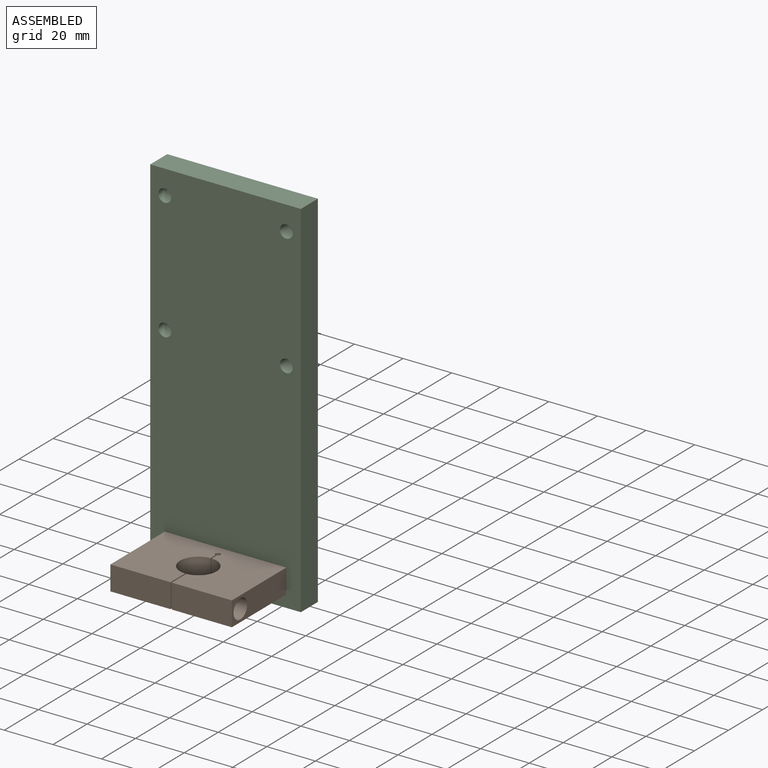
[diagram: assembled view]
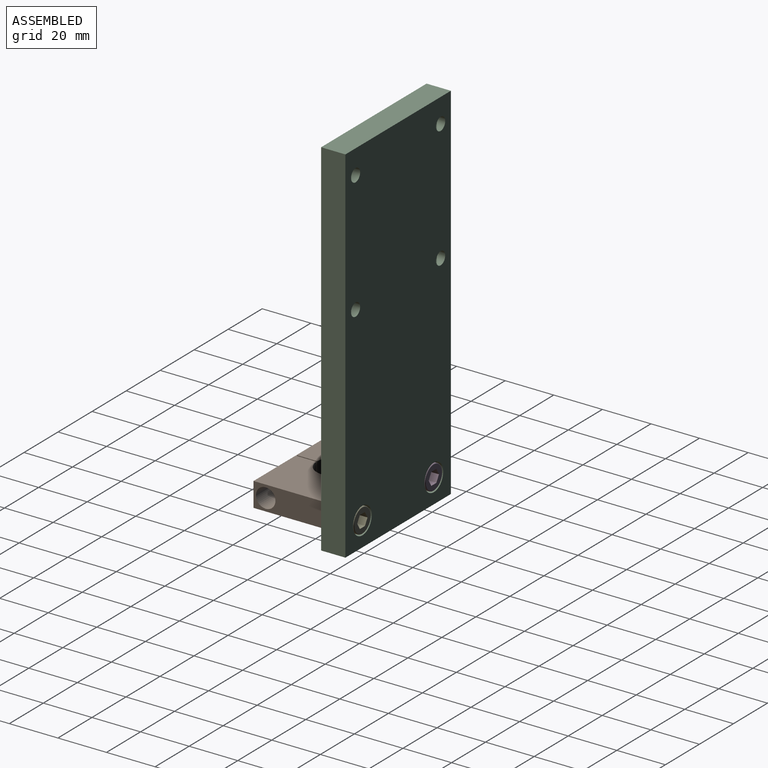
[diagram: assembled view, second angle]
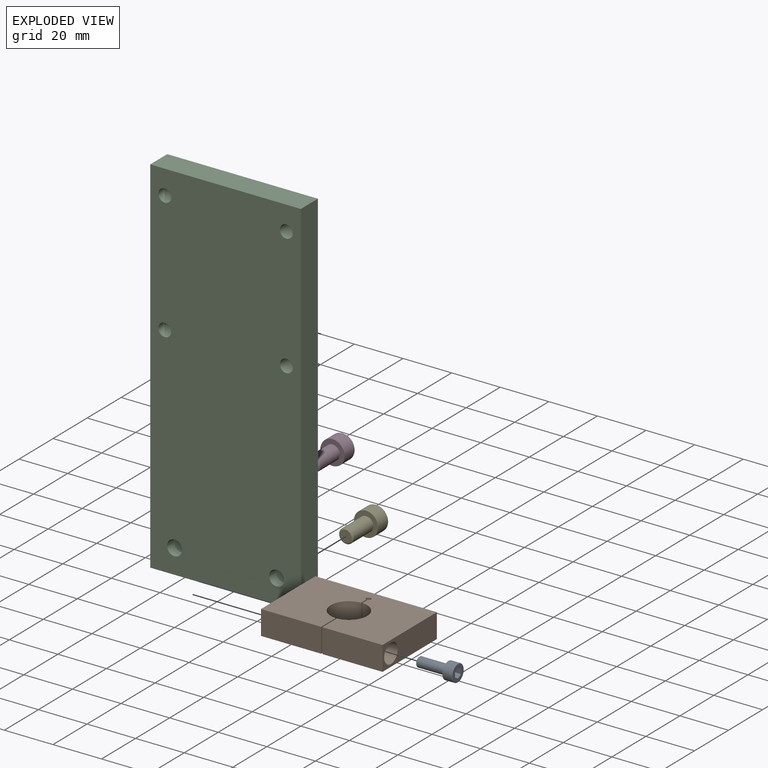
[diagram: exploded view]
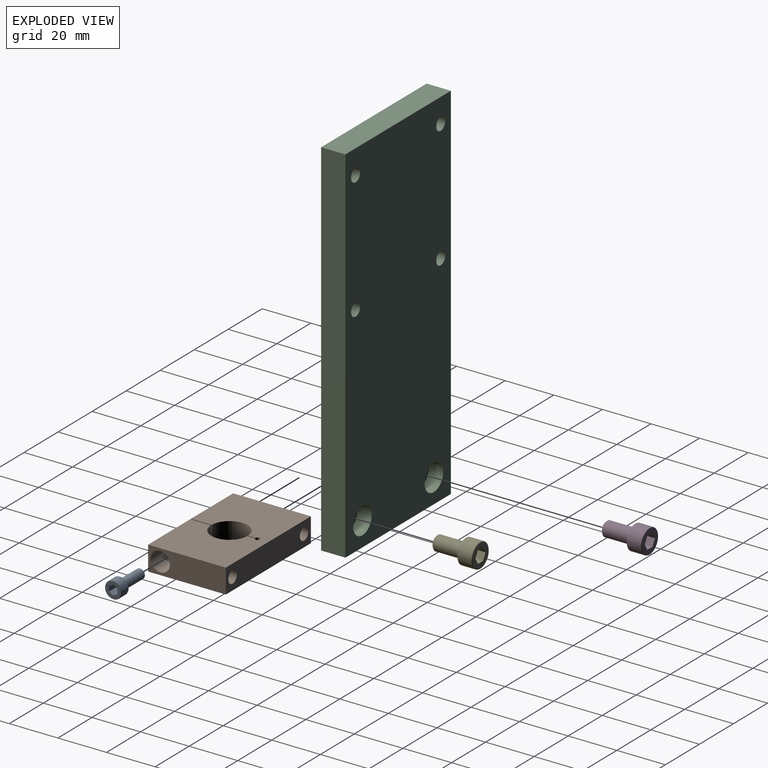
[diagram: exploded view, second angle]
ASSEMBLY  parts=5 mates=3
PART A: 14 faces, bbox 7.6x7.6x16 mm
  f0: plane 7x7mm, normal (0,0,1), area 25.9mm2, adj f1,f3,f6,f7,f8,f9,f10,f11
  f1: cylinder r=3.5mm len=7mm, axis (0,0,-1), area 82.5mm2, adj f0,f12
  f2: plane 6.5x6.5mm, normal (0,0,-1), area 22.6mm2, adj f6,f7,f8,f9,f10,f11,f12
  f3: cylinder r=2mm len=11.75mm, axis (0,0,-1), area 147.7mm2, adj f0,f5,f13
  f4: plane 3.5x3.5mm, normal (0,0,1), area 9.6mm2, adj f13
  f5: plane 4x3.5mm, normal (0,0,-1), area 10.6mm2, adj f3,f6,f7,f8,f9,f10,f11
  f6: plane 4x1.75mm, normal (0.87,-0.5,0), area 8.1mm2, adj f0,f2,f5,f7,f11
  f7: plane 4x1.75mm, normal (0.87,0.5,0), area 8.1mm2, adj f0,f2,f5,f6,f8
  f8: plane 4x2.02mm, normal (0,1,0), area 8.1mm2, adj f0,f2,f5,f7,f9
  f9: plane 4x1.75mm, normal (-0.87,0.5,0), area 8.1mm2, adj f0,f2,f5,f8,f10
  f10: plane 4x1.75mm, normal (-0.87,-0.5,0), area 8.1mm2, adj f0,f2,f5,f9,f11
  f11: plane 4x2.02mm, normal (0,-1,0), area 8.1mm2, adj f0,f2,f5,f6,f10
  f12: torus R=3.25mm, axis (0,0,1), area 8.4mm2, adj f1,f2
  f13: cone r=1.75mm half-angle=45deg, axis (0,0,-1), area 4.2mm2, adj f3,f4
PART B: 24 faces, bbox 50x32x10 mm
  f0: cylinder r=7.5mm len=14.99mm, axis (0,0,1), area 230.6mm2, adj f2,f3,f14,f22
  f1: cone r=0mm half-angle=59deg, axis (1,0,0), area 0.4mm2, adj f15,f19
  f2: plane 50x32mm, normal (0,0,-1), area 1414.4mm2, adj f0,f4,f5,f6,f7,f8,f13,f14
  f3: plane 50x32mm, normal (0,0,1), area 1414.4mm2, adj f0,f4,f5,f6,f7,f8,f13,f14
  f4: plane 24.75x10mm, normal (0,-1,0), area 247.5mm2, adj f2,f3,f6,f14
  f5: plane 32x10mm, normal (-1,0,0), area 320mm2, adj f2,f3,f7,f8
  f6: plane 32x10mm, normal (1,0,0), area 269.7mm2, adj f2,f3,f4,f8,f18
  f7: plane 24.75x10mm, normal (0,-1,0), area 247.5mm2, adj f2,f3,f5,f15
  f8: plane 50x10mm, normal (0,1,0), area 460.7mm2, adj f2,f3,f5,f6,f9,f11
  f9: cylinder r=2.5mm len=12mm, axis (0,1,0), area 188.5mm2, adj f8,f10
  f10: cone r=0mm half-angle=59deg, axis (0,1,0), area 22.9mm2, adj f9
  f11: cylinder r=2.5mm len=12mm, axis (0,1,0), area 188.5mm2, adj f8,f12
  f12: cone r=0mm half-angle=59deg, axis (0,1,0), area 22.9mm2, adj f11
  f13: cylinder r=7.5mm len=14.99mm, axis (0,0,1), area 230.6mm2, adj f2,f3,f15,f21
  f14: plane 10x8.5mm, normal (-1,0,0), area 71.2mm2, adj f0,f2,f3,f4,f16
  f15: plane 10x8.5mm, normal (1,0,0), area 76.1mm2, adj f1,f2,f3,f7,f13
  f16: cylinder r=2.1mm len=4.75mm, axis (1,0,0), area 62.7mm2, adj f14,f17
  f17: plane 8x8mm, normal (1,0,0), area 36.4mm2, adj f16,f18
  f18: cylinder r=4mm len=20mm, axis (1,0,0), area 502.7mm2, adj f6,f17
  f19: cylinder r=1.65mm len=11.4mm, axis (1,0,0), area 118.2mm2, adj f1,f20
  f20: cone r=0mm half-angle=59deg, axis (1,0,0), area 10mm2, adj f19
  f21: plane 10x3.04mm, normal (1,0,0), area 30.4mm2, adj f2,f3,f13,f23
  f22: plane 10x3.04mm, normal (-1,0,0), area 30.4mm2, adj f0,f2,f3,f23
  f23: cylinder r=1mm len=10mm, axis (0,0,1), area 57.8mm2, adj f2,f3,f21,f22
PART C: 16 faces, bbox 62x10x150 mm
  f0: plane 62x10mm, normal (0,0,-1), area 620mm2, adj f1,f3,f4,f5
  f1: plane 150x10mm, normal (1,0,0), area 1500mm2, adj f0,f2,f4,f5
  f2: plane 62x10mm, normal (0,0,1), area 620mm2, adj f1,f3,f4,f5
  f3: plane 150x10mm, normal (-1,0,0), area 1500mm2, adj f0,f2,f4,f5
  f4: plane 150x62mm, normal (0,-1,0), area 9151.4mm2, adj f0,f1,f2,f3,f6,f9,f12,f13
  f5: plane 150x62mm, normal (0,1,0), area 9021.7mm2, adj f0,f1,f2,f3,f8,f11,f12,f13
  f6: cylinder r=3.1mm len=6.2mm, axis (0,1,0), area 77.9mm2, adj f4,f7
  f7: plane 11x11mm, normal (0,1,0), area 64.8mm2, adj f6,f8
  f8: cylinder r=5.5mm len=11mm, axis (0,1,0), area 207.3mm2, adj f5,f7
  f9: cylinder r=3.1mm len=6.2mm, axis (0,1,0), area 77.9mm2, adj f4,f10
  f10: plane 11x11mm, normal (0,1,0), area 64.8mm2, adj f9,f11
  f11: cylinder r=5.5mm len=11mm, axis (0,1,0), area 207.3mm2, adj f5,f10
  f12: cylinder r=2.65mm len=10mm, axis (0,1,0), area 166.5mm2, adj f4,f5
  f13: cylinder r=2.65mm len=10mm, axis (0,1,0), area 166.5mm2, adj f4,f5
  f14: cylinder r=2.65mm len=10mm, axis (0,1,0), area 166.5mm2, adj f4,f5
  f15: cylinder r=2.65mm len=10mm, axis (0,1,0), area 166.5mm2, adj f4,f5
PART D: 14 faces, bbox 10.8x10.8x18 mm
  f0: plane 10x10mm, normal (0,0,1), area 50.3mm2, adj f1,f3
  f1: cylinder r=5mm len=10mm, axis (0,0,-1), area 180.6mm2, adj f0,f12
  f2: plane 9.5x9.5mm, normal (0,0,-1), area 47.5mm2, adj f5,f6,f7,f8,f9,f10,f12
  f3: cylinder r=3mm len=11.5mm, axis (0,0,-1), area 216.8mm2, adj f0,f13
  f4: plane 5x5mm, normal (0,0,1), area 19.6mm2, adj f13
  f5: plane 4x2.6mm, normal (0.87,-0.5,0), area 12mm2, adj f2,f6,f10,f11
  f6: plane 4x2.6mm, normal (0.87,0.5,0), area 12mm2, adj f2,f5,f7,f11
  f7: plane 4x3mm, normal (0,1,0), area 12mm2, adj f2,f6,f8,f11
  f8: plane 4x2.6mm, normal (-0.87,0.5,0), area 12mm2, adj f2,f7,f9,f11
  f9: plane 4x2.6mm, normal (-0.87,-0.5,0), area 12mm2, adj f2,f8,f10,f11
  f10: plane 4x3mm, normal (0,-1,0), area 12mm2, adj f2,f5,f9,f11
  f11: plane 6x5.2mm, normal (0,0,-1), area 23.4mm2, adj f5,f6,f7,f8,f9,f10
  f12: torus R=4.75mm, axis (0,0,1), area 12.1mm2, adj f1,f2
  f13: cone r=2.5mm half-angle=45deg, axis (0,0,-1), area 12.2mm2, adj f3,f4
PART E: same geometry as D
PLACE A rot(axis=(0,-1,0),90deg) t=(29.94,-51.78,-65.4)mm
PLACE B t=(0,0,-0.98)mm
PLACE C t=(0,0,-0.98)mm
PLACE D rot(axis=(1,0,0),90deg) t=(-44.21,-19.48,-77.21)mm
PLACE E rot(axis=(1,0,0),90deg) t=(-2.21,-19.48,-77.21)mm
MATE fastened A.f1 <-> B.f1  axis (1,0,0) through (5,-37,-65.98)mm
MATE fastened C.f9 <-> D.f1  axis (0,1,0) through (-21,-6,-65.98)mm
MATE fastened C.f6 <-> E.f1  axis (0,1,0) through (21,-6,-65.98)mm
